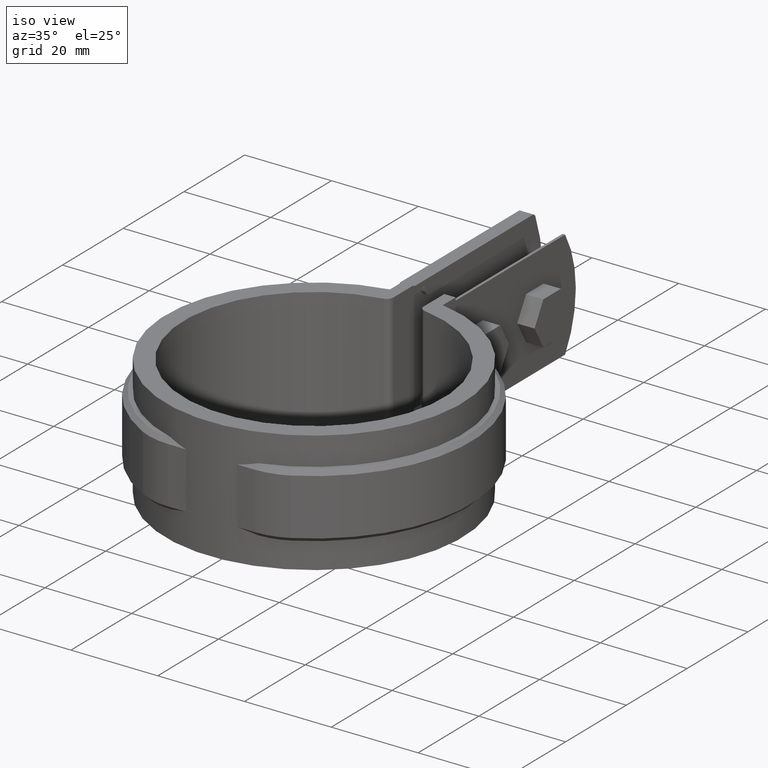
[diagram: clean part render]
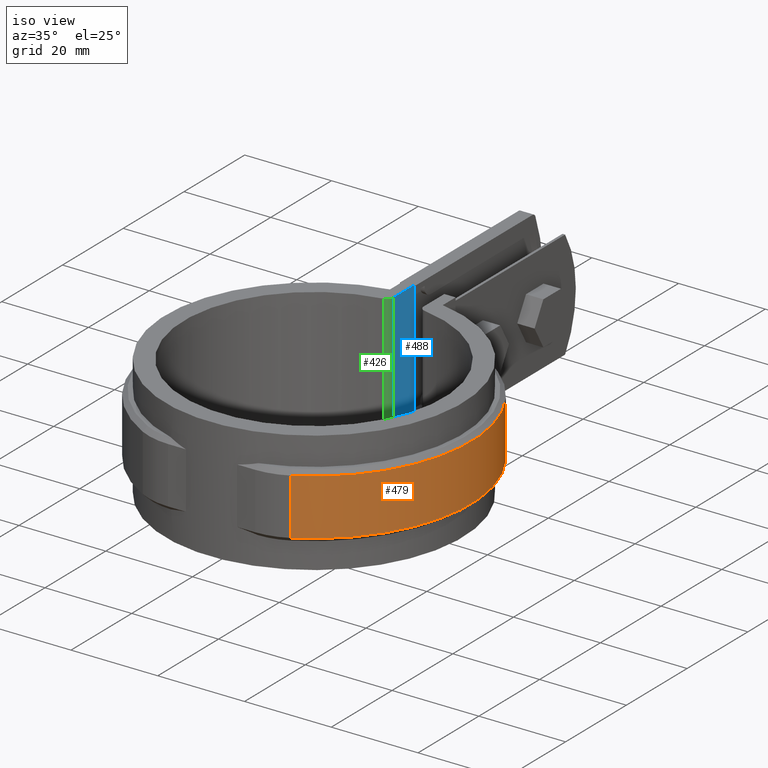
[diagram: same view with three faces highlighted in distinct colors, each labeled with its STEP entity id]
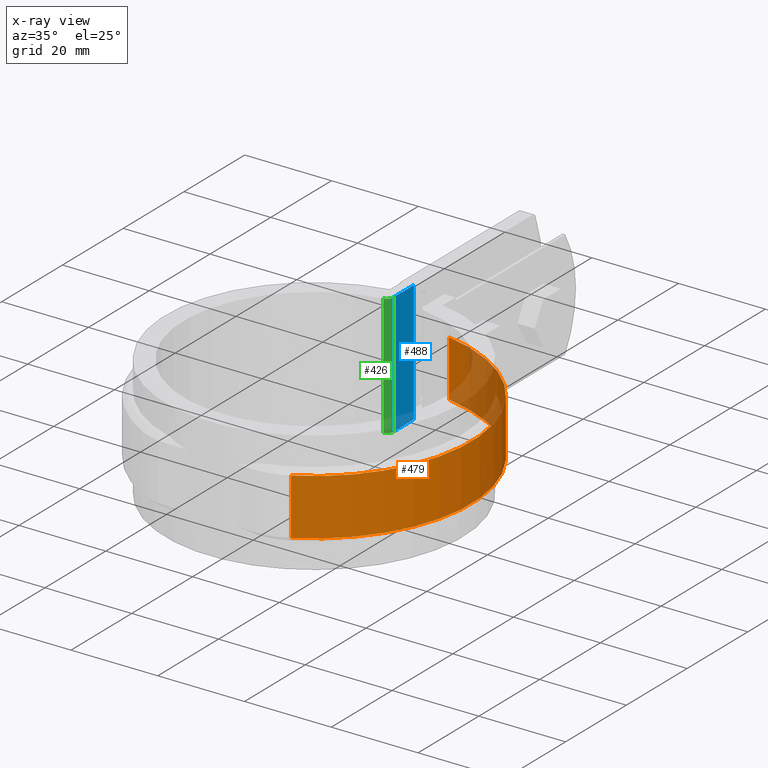
[diagram: x-ray of the same camera — body ghosted, the three highlighted faces saturated]
A machine part, iso view with three faces highlighted in distinct colors.
The next image is the same camera in x-ray (body ghosted, the three faces saturated) — at least one of them is partly hidden behind the body in this view.
Their STEP definitions:

[orange] entity #479 — the highlighted cylindrical surface (partial cylindrical patch) has radius 36.245 mm, axis along (0, 0, 1).
#479 = ADVANCED_FACE( '', ( #970 ), #971, .T. );
#970 = FACE_OUTER_BOUND( '', #2256, .T. );
#971 = CYLINDRICAL_SURFACE( '', #2257, 36.2450000000000 );
#2256 = EDGE_LOOP( '', ( #5106, #5107, #5108, #5109 ) );
#2257 = AXIS2_PLACEMENT_3D( '', #5110, #5111, #5112 );
#5106 = ORIENTED_EDGE( '', *, *, #7401, .T. );
#5107 = ORIENTED_EDGE( '', *, *, #7402, .T. );
#5108 = ORIENTED_EDGE( '', *, *, #7403, .F. );
#5109 = ORIENTED_EDGE( '', *, *, #7350, .T. );
#5110 = CARTESIAN_POINT( '', ( 8.67361737988404E-016, 0.000000000000000, -20.0000000000000 ) );
#5111 = DIRECTION( '', ( 0.000000000000000, 0.000000000000000, 1.00000000000000 ) );
#5112 = DIRECTION( '', ( 0.171773235086843, 0.985136516279749, 0.000000000000000 ) );
#7350 = EDGE_CURVE( '', #8512, #8509, #8513, .T. );
#7401 = EDGE_CURVE( '', #8509, #8584, #8585, .F. );
#7402 = EDGE_CURVE( '', #8584, #8309, #8586, .T. );
#7403 = EDGE_CURVE( '', #8512, #8309, #8587, .T. );
#8309 = VERTEX_POINT( '', #11002 );
#8509 = VERTEX_POINT( '', #12074 );
#8512 = VERTEX_POINT( '', #12080 );
#8513 = CIRCLE( '', #12081, 36.2450000000000 );
#8584 = VERTEX_POINT( '', #12207 );
#8585 = LINE( '', #12208, #12209 );
#8586 = CIRCLE( '', #12210, 36.2450000000000 );
#8587 = LINE( '', #12211, #12212 );
#11002 = CARTESIAN_POINT( '', ( 17.0871064701963, -31.9645243586726, -6.00000000000000 ) );
#12074 = CARTESIAN_POINT( '', ( 6.09999999999998, 35.7280005737797, -19.0000000000000 ) );
#12080 = CARTESIAN_POINT( '', ( 17.0871064701963, -31.9645243586726, -19.0000000000000 ) );
#12081 = AXIS2_PLACEMENT_3D( '', #13974, #13975, #13976 );
#12207 = CARTESIAN_POINT( '', ( 6.09999999999998, 35.7280005737797, -6.00000000000000 ) );
#12208 = CARTESIAN_POINT( '', ( 6.09999999999998, 35.7280005737797, -20.0000000000000 ) );
#12209 = VECTOR( '', #14062, 1000.00000000000 );
#12210 = AXIS2_PLACEMENT_3D( '', #14063, #14064, #14065 );
#12211 = CARTESIAN_POINT( '', ( 17.0871064701963, -31.9645243586726, -20.0000000000000 ) );
#12212 = VECTOR( '', #14066, 1000.00000000000 );
#13974 = CARTESIAN_POINT( '', ( 8.67361737988404E-016, 0.000000000000000, -19.0000000000000 ) );
#13975 = DIRECTION( '', ( 0.000000000000000, 0.000000000000000, 1.00000000000000 ) );
#13976 = DIRECTION( '', ( 1.00000000000000, 0.000000000000000, 0.000000000000000 ) );
#14062 = DIRECTION( '', ( 0.000000000000000, 0.000000000000000, -1.00000000000000 ) );
#14063 = CARTESIAN_POINT( '', ( 8.67361737988404E-016, 0.000000000000000, -6.00000000000000 ) );
#14064 = DIRECTION( '', ( 0.000000000000000, 0.000000000000000, -1.00000000000000 ) );
#14065 = DIRECTION( '', ( -1.00000000000000, 0.000000000000000, 0.000000000000000 ) );
#14066 = DIRECTION( '', ( 0.000000000000000, 0.000000000000000, 1.00000000000000 ) );

[blue] entity #488 — the highlighted planar face has unit normal (1, -0, 0).
#488 = ADVANCED_FACE( '', ( #988 ), #989, .T. );
#988 = FACE_OUTER_BOUND( '', #2274, .T. );
#989 = PLANE( '', #2275 );
#2274 = EDGE_LOOP( '', ( #5225, #5226, #5227, #5228 ) );
#2275 = AXIS2_PLACEMENT_3D( '', #5229, #5230, #5231 );
#5225 = ORIENTED_EDGE( '', *, *, #7408, .T. );
#5226 = ORIENTED_EDGE( '', *, *, #7382, .T. );
#5227 = ORIENTED_EDGE( '', *, *, #7396, .F. );
#5228 = ORIENTED_EDGE( '', *, *, #7239, .T. );
#5229 = CARTESIAN_POINT( '', ( -3.49999999999999, 29.7900994459569, -26.5000000000000 ) );
#5230 = DIRECTION( '', ( 1.00000000000000, -6.07153216591882E-017, 0.000000000000000 ) );
#5231 = DIRECTION( '', ( 0.000000000000000, 0.000000000000000, 1.00000000000000 ) );
#7239 = EDGE_CURVE( '', #8317, #8321, #8323, .T. );
#7382 = EDGE_CURVE( '', #8561, #8559, #8562, .T. );
#7396 = EDGE_CURVE( '', #8317, #8559, #8578, .T. );
#7408 = EDGE_CURVE( '', #8321, #8561, #8592, .F. );
#8317 = VERTEX_POINT( '', #11015 );
#8321 = VERTEX_POINT( '', #11020 );
#8323 = LINE( '', #11022, #11023 );
#8559 = VERTEX_POINT( '', #12148 );
#8561 = VERTEX_POINT( '', #12151 );
#8562 = LINE( '', #12152, #12153 );
#8578 = LINE( '', #12198, #12199 );
#8592 = LINE( '', #12222, #12223 );
#11015 = CARTESIAN_POINT( '', ( -3.49999999999999, 31.1006430801680, 1.50000000000000 ) );
#11020 = CARTESIAN_POINT( '', ( -3.49999999999999, 31.1006430801680, -26.5000000000000 ) );
#11022 = CARTESIAN_POINT( '', ( -3.49999999999999, 31.1006430801680, -26.5000000000000 ) );
#11023 = VECTOR( '', #13883, 1000.00000000000 );
#12148 = CARTESIAN_POINT( '', ( -3.49999999999999, 37.8989738519314, 1.50000000000000 ) );
#12151 = CARTESIAN_POINT( '', ( -3.49999999999998, 37.8989738519314, -26.5000000000000 ) );
#12152 = CARTESIAN_POINT( '', ( -3.49999999999999, 37.8989738519314, -26.5000000000000 ) );
#12153 = VECTOR( '', #14036, 1000.00000000000 );
#12198 = CARTESIAN_POINT( '', ( -3.49999999999999, 2.12503625807158E-016, 1.50000000000000 ) );
#12199 = VECTOR( '', #14053, 1000.00000000000 );
#12222 = CARTESIAN_POINT( '', ( -3.49999999999999, 29.7900994459569, -26.5000000000000 ) );
#12223 = VECTOR( '', #14072, 1000.00000000000 );
#13883 = DIRECTION( '', ( 0.000000000000000, 0.000000000000000, -1.00000000000000 ) );
#14036 = DIRECTION( '', ( 0.000000000000000, 0.000000000000000, 1.00000000000000 ) );
#14053 = DIRECTION( '', ( 6.07153216591882E-017, 1.00000000000000, 0.000000000000000 ) );
#14072 = DIRECTION( '', ( -6.07153216591882E-017, -1.00000000000000, 0.000000000000000 ) );

[green] entity #426 — the highlighted cylindrical surface (edge-blend (fillet) strip) has radius 1.5 mm, axis along (0, 0, 1).
#426 = ADVANCED_FACE( '', ( #860 ), #861, .T. );
#860 = FACE_OUTER_BOUND( '', #1886, .T. );
#861 = CYLINDRICAL_SURFACE( '', #1887, 1.50000000000000 );
#1886 = EDGE_LOOP( '', ( #4128, #4129, #4130, #4131 ) );
#1887 = AXIS2_PLACEMENT_3D( '', #4132, #4133, #4134 );
#4128 = ORIENTED_EDGE( '', *, *, #7236, .F. );
#4129 = ORIENTED_EDGE( '', *, *, #7237, .F. );
#4130 = ORIENTED_EDGE( '', *, *, #7238, .F. );
#4131 = ORIENTED_EDGE( '', *, *, #7239, .F. );
#4132 = CARTESIAN_POINT( '', ( -4.99999999999999, 31.1006430801680, -114.313459843239 ) );
#4133 = DIRECTION( '', ( 0.000000000000000, 0.000000000000000, 1.00000000000000 ) );
#4134 = DIRECTION( '', ( 1.00000000000000, 0.000000000000000, 0.000000000000000 ) );
#7236 = EDGE_CURVE( '', #8316, #8317, #8318, .T. );
#7237 = EDGE_CURVE( '', #8319, #8316, #8320, .T. );
#7238 = EDGE_CURVE( '', #8321, #8319, #8322, .F. );
#7239 = EDGE_CURVE( '', #8317, #8321, #8323, .T. );
#8316 = VERTEX_POINT( '', #11014 );
#8317 = VERTEX_POINT( '', #11015 );
#8318 = CIRCLE( '', #11016, 1.50000000000000 );
#8319 = VERTEX_POINT( '', #11017 );
#8320 = LINE( '', #11018, #11019 );
#8321 = VERTEX_POINT( '', #11020 );
#8322 = CIRCLE( '', #11021, 1.50000000000000 );
#8323 = LINE( '', #11022, #11023 );
#11014 = CARTESIAN_POINT( '', ( -4.76190476190476, 29.6196600763504, 1.50000000000000 ) );
#11015 = CARTESIAN_POINT( '', ( -3.49999999999999, 31.1006430801680, 1.50000000000000 ) );
#11016 = AXIS2_PLACEMENT_3D( '', #13876, #13877, #13878 );
#11017 = CARTESIAN_POINT( '', ( -4.76190476190476, 29.6196600763504, -26.5000000000000 ) );
#11018 = CARTESIAN_POINT( '', ( -4.76190476190476, 29.6196600763504, -114.313459843239 ) );
#11019 = VECTOR( '', #13879, 1000.00000000000 );
#11020 = CARTESIAN_POINT( '', ( -3.49999999999999, 31.1006430801680, -26.5000000000000 ) );
#11021 = AXIS2_PLACEMENT_3D( '', #13880, #13881, #13882 );
#11022 = CARTESIAN_POINT( '', ( -3.49999999999999, 31.1006430801680, -26.5000000000000 ) );
#11023 = VECTOR( '', #13883, 1000.00000000000 );
#13876 = CARTESIAN_POINT( '', ( -4.99999999999999, 31.1006430801680, 1.50000000000000 ) );
#13877 = DIRECTION( '', ( 0.000000000000000, 0.000000000000000, 1.00000000000000 ) );
#13878 = DIRECTION( '', ( 1.00000000000000, 0.000000000000000, 0.000000000000000 ) );
#13879 = DIRECTION( '', ( 0.000000000000000, 0.000000000000000, 1.00000000000000 ) );
#13880 = CARTESIAN_POINT( '', ( -4.99999999999999, 31.1006430801680, -26.5000000000000 ) );
#13881 = DIRECTION( '', ( 0.000000000000000, 0.000000000000000, 1.00000000000000 ) );
#13882 = DIRECTION( '', ( 1.00000000000000, 0.000000000000000, 0.000000000000000 ) );
#13883 = DIRECTION( '', ( 0.000000000000000, 0.000000000000000, -1.00000000000000 ) );